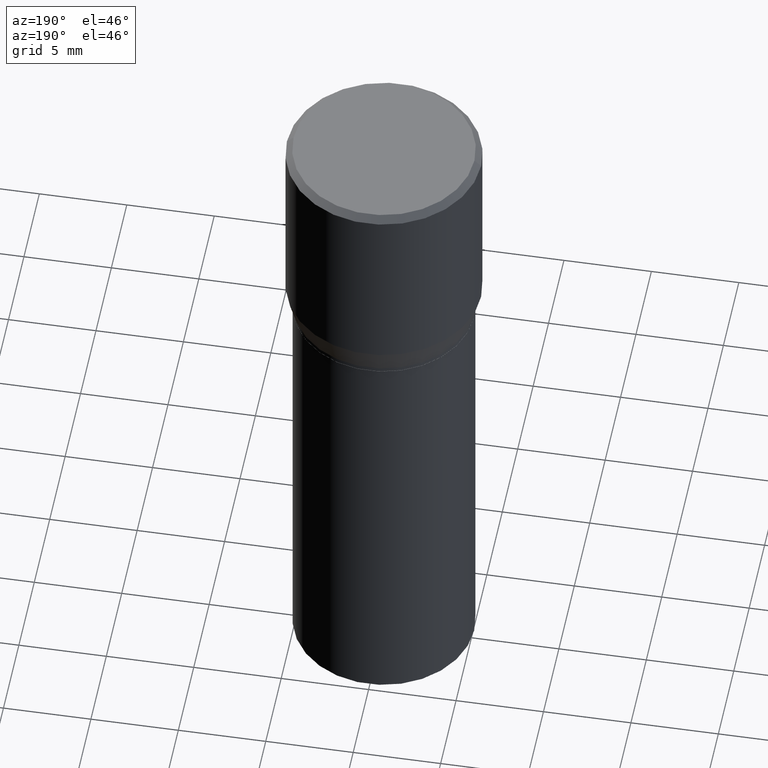
[diagram: clean part render]
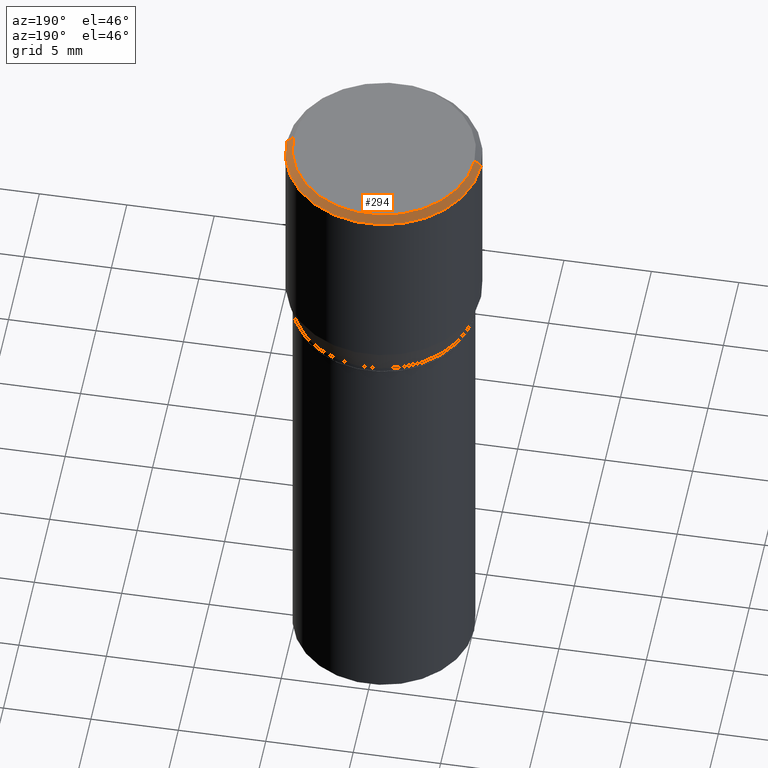
[diagram: same view with one face highlighted and labeled with its STEP entity id]
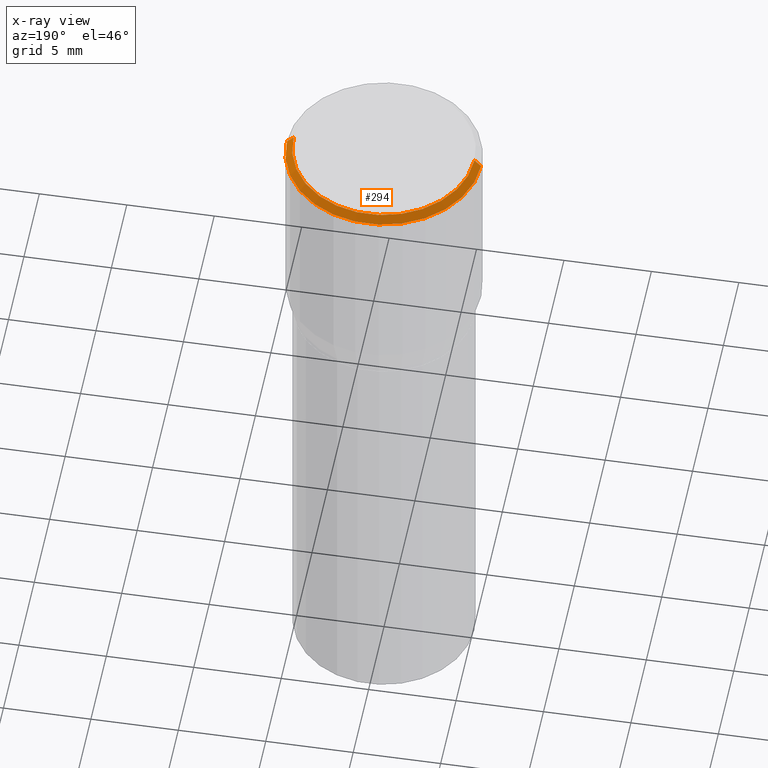
[diagram: x-ray of the same camera — body ghosted, the highlighted face saturated]
A machine part, auxiliary view. The second image highlights one B-rep face of the part: STEP entity #294.
The next image is the same camera in x-ray: the body ghosted, the highlighted face saturated — about 0% of this face is hidden behind the body in this view.
In plain terms, the highlighted conical surface has half-angle 45 deg.
Its self-contained STEP definition (entity closure, byte-faithful):
#10 = FACE_OUTER_BOUND ( 'NONE', #403, .T. ) ;
#11 = LINE ( 'NONE', #161, #388 ) ;
#29 = DIRECTION ( 'NONE',  ( -1.000000000000000000, 6.982962677686266711E-15, 0.000000000000000000 ) ) ;
#53 = LINE ( 'NONE', #108, #99 ) ;
#70 = EDGE_CURVE ( 'NONE', #450, #211, #11, .T. ) ;
#74 = ORIENTED_EDGE ( 'NONE', *, *, #162, .T. ) ;
#99 = VECTOR ( 'NONE', #293, 39.37007874015748143 ) ;
#108 = CARTESIAN_POINT ( 'NONE',  ( 0.2187500000000000000, -1.553106157095169608E-15, -0.01499999999999999944 ) ) ;
#117 = CARTESIAN_POINT ( 'NONE',  ( 3.668203209277705088E-31, -5.237222008264718399E-17, -0.01499999999999999944 ) ) ;
#130 = CARTESIAN_POINT ( 'NONE',  ( 3.668203209277705088E-31, -5.237222008264718399E-17, -0.01499999999999999944 ) ) ;
#161 = CARTESIAN_POINT ( 'NONE',  ( -0.2187500000000000000, 1.475150865661223567E-15, -0.01499999999999999944 ) ) ;
#162 = EDGE_CURVE ( 'NONE', #363, #211, #406, .T. ) ;
#171 = EDGE_CURVE ( 'NONE', #427, #363, #53, .T. ) ;
#189 = CIRCLE ( 'NONE', #295, 0.2037499999999999867 ) ;
#195 = DIRECTION ( 'NONE',  ( 1.000000000000000000, -6.982962677686266711E-15, 4.875065411617369217E-29 ) ) ;
#206 = CARTESIAN_POINT ( 'NONE',  ( 0.2037499999999999867, -1.475466312070559275E-15, 1.060151966214670170E-16 ) ) ;
#211 = VERTEX_POINT ( 'NONE', #258 ) ;
#212 = AXIS2_PLACEMENT_3D ( 'NONE', #130, #284, #383 ) ;
#224 = CARTESIAN_POINT ( 'NONE',  ( -0.2037499999999999867, 1.448964755619900421E-15, 1.060151966214468518E-16 ) ) ;
#240 = DIRECTION ( 'NONE',  ( -0.7071067811865452413, 2.468850131082233000E-15, -0.7071067811865497932 ) ) ;
#247 = ORIENTED_EDGE ( 'NONE', *, *, #70, .F. ) ;
#258 = CARTESIAN_POINT ( 'NONE',  ( -0.2187500000000000000, 7.746759649129616577E-16, -0.01499999999999999944 ) ) ;
#284 = DIRECTION ( 'NONE',  ( -2.445468806185136597E-29, 3.491481338843145583E-15, 1.000000000000000000 ) ) ;
#290 = ORIENTED_EDGE ( 'NONE', *, *, #376, .F. ) ;
#293 = DIRECTION ( 'NONE',  ( 0.7071067811865452413, -7.319954787623248157E-15, -0.7071067811865497932 ) ) ;
#294 = ADVANCED_FACE ( 'NONE', ( #10 ), #345, .T. ) ;
#295 = AXIS2_PLACEMENT_3D ( 'NONE', #296, #426, #195 ) ;
#296 = CARTESIAN_POINT ( 'NONE',  ( -2.592568563193567003E-45, 3.701500806376036554E-31, 1.060151966214568974E-16 ) ) ;
#298 = ORIENTED_EDGE ( 'NONE', *, *, #171, .T. ) ;
#302 = AXIS2_PLACEMENT_3D ( 'NONE', #117, #397, #29 ) ;
#345 = CONICAL_SURFACE ( 'NONE', #302, 0.2187500000000000000, 0.7853981633974450594 ) ;
#363 = VERTEX_POINT ( 'NONE', #462 ) ;
#376 = EDGE_CURVE ( 'NONE', #427, #450, #189, .T. ) ;
#383 = DIRECTION ( 'NONE',  ( 1.000000000000000000, -6.982962677686266711E-15, 0.000000000000000000 ) ) ;
#388 = VECTOR ( 'NONE', #240, 39.37007874015748143 ) ;
#397 = DIRECTION ( 'NONE',  ( 2.445468806185136597E-29, -3.491481338843145583E-15, -1.000000000000000000 ) ) ;
#403 = EDGE_LOOP ( 'NONE', ( #290, #298, #74, #247 ) ) ;
#406 = CIRCLE ( 'NONE', #212, 0.2187500000000000000 ) ;
#426 = DIRECTION ( 'NONE',  ( -2.445468806185136597E-29, 3.491481338843145583E-15, 1.000000000000000000 ) ) ;
#427 = VERTEX_POINT ( 'NONE', #206 ) ;
#450 = VERTEX_POINT ( 'NONE', #224 ) ;
#462 = CARTESIAN_POINT ( 'NONE',  ( 0.2187500000000000000, -1.579895305826517922E-15, -0.01499999999999999944 ) ) ;